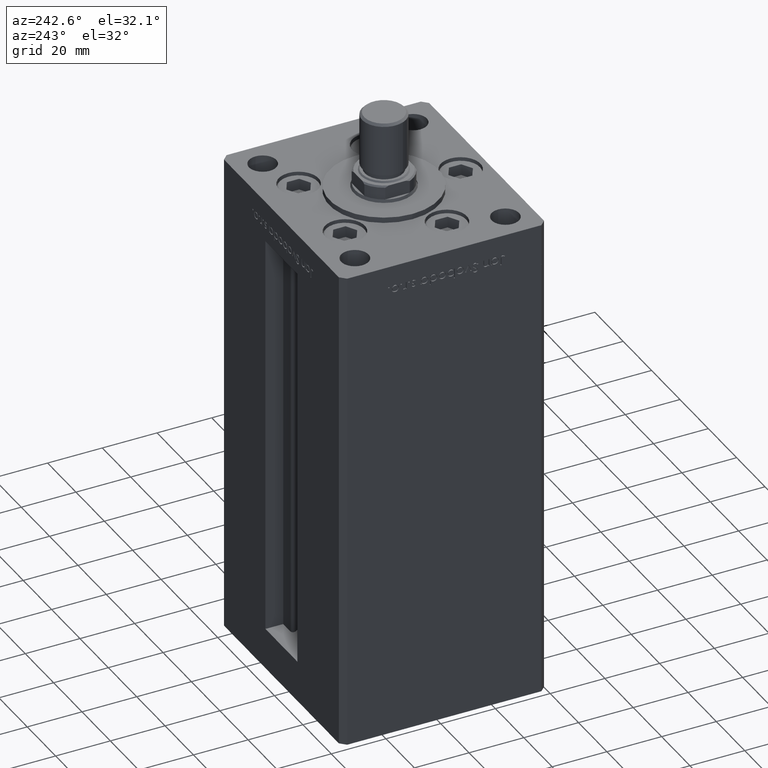
[diagram: clean part render]
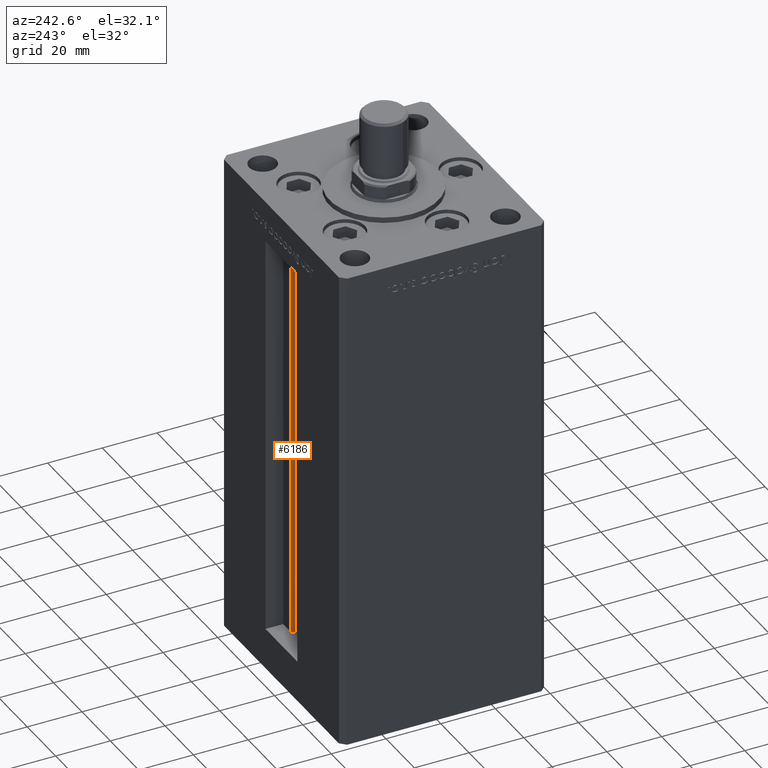
[diagram: same view with one face highlighted and labeled with its STEP entity id]
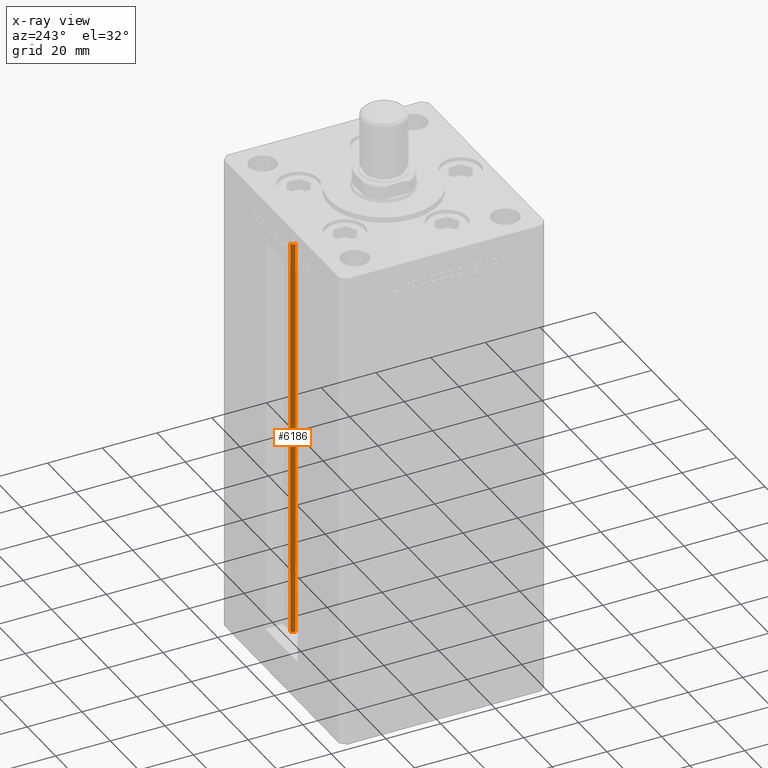
[diagram: x-ray of the same camera — body ghosted, the highlighted face saturated]
A machine part, auxiliary view. The second image highlights one B-rep face of the part: STEP entity #6186.
The next image is the same camera in x-ray: the body ghosted, the highlighted face saturated — about 0% of this face is hidden behind the body in this view.
In plain terms, the highlighted cylindrical surface (edge-blend (fillet) strip) has radius 0.9333 mm, axis along (0, 0, 1).
Its self-contained STEP definition (entity closure, byte-faithful):
#1781 = DIRECTION ( 'NONE',  ( -0.000000000000000000, -0.000000000000000000, 1.000000000000000000 ) ) ;
#1950 = DIRECTION ( 'NONE',  ( -0.000000000000000000, -0.000000000000000000, 1.000000000000000000 ) ) ;
#3402 = EDGE_CURVE ( 'NONE', #29840, #14175, #5752, .T. ) ;
#4716 = CARTESIAN_POINT ( 'NONE',  ( 6.183333333333999704, 30.06666666666599141, 148.5000000000000000 ) ) ;
#5406 = CARTESIAN_POINT ( 'NONE',  ( 6.183333333333999704, 30.06666666666599141, 0.000000000000000000 ) ) ;
#5752 = LINE ( 'NONE', #38111, #40755 ) ;
#6186 = ADVANCED_FACE ( 'NONE', ( #18146 ), #6739, .T. ) ;
#6739 = CYLINDRICAL_SURFACE ( 'NONE', #25621, 0.9333333333340015914 ) ;
#10236 = VECTOR ( 'NONE', #1950, 1000.000000000000000 ) ;
#10654 = VERTEX_POINT ( 'NONE', #22194 ) ;
#11837 = EDGE_CURVE ( 'NONE', #29840, #39864, #39171, .T. ) ;
#14160 = DIRECTION ( 'NONE',  ( 1.000000000000000000, 0.000000000000000000, 0.000000000000000000 ) ) ;
#14175 = VERTEX_POINT ( 'NONE', #46228 ) ;
#16906 = DIRECTION ( 'NONE',  ( 0.000000000000000000, 0.000000000000000000, -1.000000000000000000 ) ) ;
#18146 = FACE_OUTER_BOUND ( 'NONE', #45918, .T. ) ;
#19692 = AXIS2_PLACEMENT_3D ( 'NONE', #5406, #34048, #29021 ) ;
#22194 = CARTESIAN_POINT ( 'NONE',  ( 6.183333333333999704, 30.99999999999999289, 148.5000000000000000 ) ) ;
#25621 = AXIS2_PLACEMENT_3D ( 'NONE', #31154, #34867, #14160 ) ;
#27188 = ORIENTED_EDGE ( 'NONE', *, *, #37872, .F. ) ;
#29021 = DIRECTION ( 'NONE',  ( 1.000000000000000000, 0.000000000000000000, 0.000000000000000000 ) ) ;
#29840 = VERTEX_POINT ( 'NONE', #34753 ) ;
#30347 = CARTESIAN_POINT ( 'NONE',  ( 6.183333333333999704, 30.99999999999999289, 0.000000000000000000 ) ) ;
#31154 = CARTESIAN_POINT ( 'NONE',  ( 6.183333333333999704, 30.06666666666599141, 0.000000000000000000 ) ) ;
#34048 = DIRECTION ( 'NONE',  ( -0.000000000000000000, -0.000000000000000000, -1.000000000000000000 ) ) ;
#34753 = CARTESIAN_POINT ( 'NONE',  ( 5.375042956467943611, 29.59999999999899245, 0.000000000000000000 ) ) ;
#34867 = DIRECTION ( 'NONE',  ( -0.000000000000000000, -0.000000000000000000, 1.000000000000000000 ) ) ;
#35107 = LINE ( 'NONE', #30347, #10236 ) ;
#36623 = AXIS2_PLACEMENT_3D ( 'NONE', #4716, #16906, #48994 ) ;
#37872 = EDGE_CURVE ( 'NONE', #39864, #10654, #35107, .T. ) ;
#38111 = CARTESIAN_POINT ( 'NONE',  ( 5.375042956467943611, 29.59999999999899245, 0.000000000000000000 ) ) ;
#38798 = ORIENTED_EDGE ( 'NONE', *, *, #11837, .F. ) ;
#39171 = CIRCLE ( 'NONE', #19692, 0.9333333333340015914 ) ;
#39182 = CIRCLE ( 'NONE', #36623, 0.9333333333340015914 ) ;
#39598 = CARTESIAN_POINT ( 'NONE',  ( 6.183333333333999704, 30.99999999999999289, 0.000000000000000000 ) ) ;
#39607 = ORIENTED_EDGE ( 'NONE', *, *, #3402, .T. ) ;
#39864 = VERTEX_POINT ( 'NONE', #39598 ) ;
#40755 = VECTOR ( 'NONE', #1781, 1000.000000000000000 ) ;
#42184 = EDGE_CURVE ( 'NONE', #14175, #10654, #39182, .T. ) ;
#42371 = ORIENTED_EDGE ( 'NONE', *, *, #42184, .T. ) ;
#45918 = EDGE_LOOP ( 'NONE', ( #27188, #38798, #39607, #42371 ) ) ;
#46228 = CARTESIAN_POINT ( 'NONE',  ( 5.375042956467944499, 29.59999999999899245, 148.5000000000000000 ) ) ;
#48994 = DIRECTION ( 'NONE',  ( 1.000000000000000000, 0.000000000000000000, 0.000000000000000000 ) ) ;